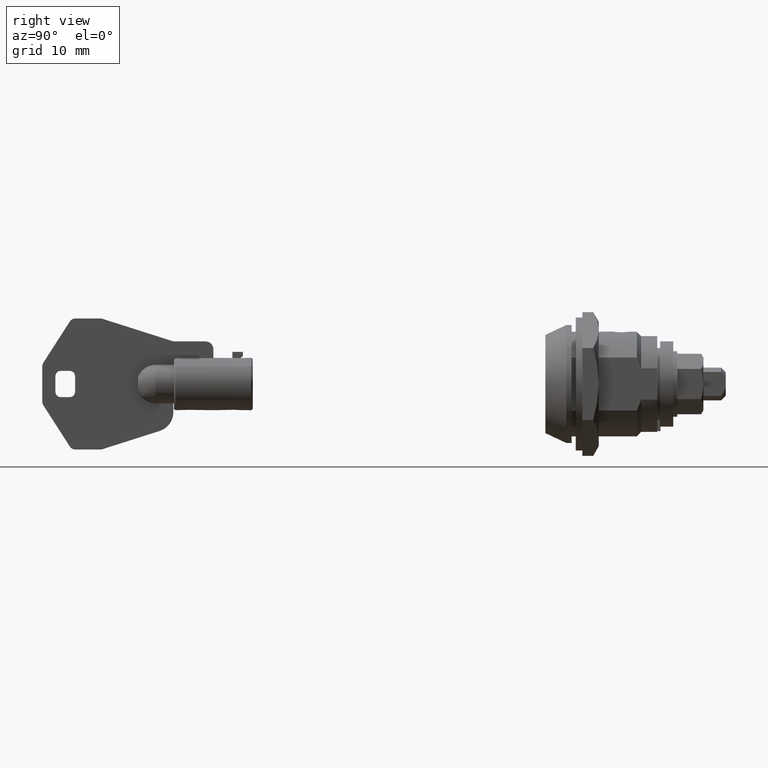
[diagram: clean part render]
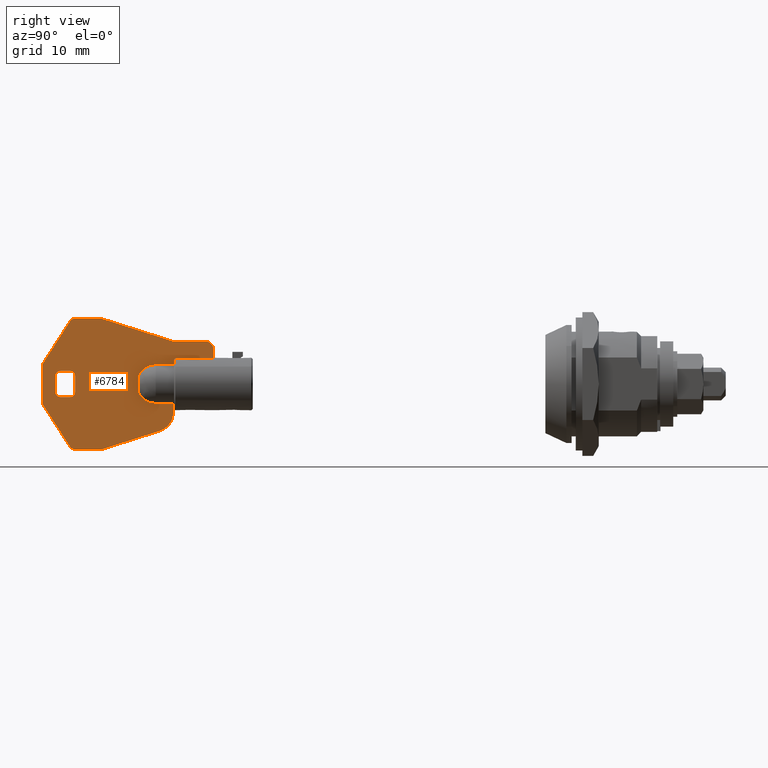
[diagram: same view with one face highlighted and labeled with its STEP entity id]
A machine part, right view. The second image highlights one B-rep face of the part: STEP entity #6784.
In plain terms, the highlighted face is a freeform B-spline surface patch.
Its self-contained STEP definition (entity closure, byte-faithful):
#5703=CARTESIAN_POINT('',(-50.649500000000003,-0.600000000000000,3.954743986656840));
#5704=VERTEX_POINT('',#5703);
#5712=CARTESIAN_POINT('',(-56.449500000000000,-0.600000000000000,3.954743986656840));
#5713=VERTEX_POINT('',#5712);
#5714=CARTESIAN_POINT('',(-50.649500000000003,-0.600000000000000,3.954743986656840));
#5715=CARTESIAN_POINT('',(-56.449500000000000,-0.600000000000000,3.954743986656840));
#5716=QUASI_UNIFORM_CURVE('',1,(#5714,#5715),.UNSPECIFIED.,.F.,.U.);
#5717=EDGE_CURVE('',#5704,#5713,#5716,.T.);
#5791=CARTESIAN_POINT('',(-71.749499999999998,-0.600000000000000,-1.200000000000088));
#5792=VERTEX_POINT('',#5791);
#5793=CARTESIAN_POINT('',(-71.749499999999998,-0.600000000000045,1.200000000000000));
#5794=VERTEX_POINT('',#5793);
#5795=CARTESIAN_POINT('',(-71.749499999999998,-0.600000000000000,-1.200000000000088));
#5796=CARTESIAN_POINT('',(-71.749499999999998,-0.600000000000045,1.200000000000000));
#5797=QUASI_UNIFORM_CURVE('',1,(#5795,#5796),.UNSPECIFIED.,.F.,.U.);
#5798=EDGE_CURVE('',#5792,#5794,#5797,.T.);
#5836=CARTESIAN_POINT('',(-72.549500000000009,-0.600000000000045,-2.0));
#5837=VERTEX_POINT('',#5836);
#5838=CARTESIAN_POINT('',(-72.549500000000009,-0.600000000000045,-2.0));
#5839=CARTESIAN_POINT('',(-72.451308555489618,-0.600000000000048,-2.000092947249154));
#5840=CARTESIAN_POINT('',(-72.294301021157239,-0.600000000000053,-1.970691603403367));
#5841=CARTESIAN_POINT('',(-72.083872913055274,-0.600000000000049,-1.861520411829044));
#5842=CARTESIAN_POINT('',(-71.907328547236602,-0.600000000000042,-1.701605605725473));
#5843=CARTESIAN_POINT('',(-71.778965035456665,-0.600000000000025,-1.468350441424316));
#5844=CARTESIAN_POINT('',(-71.749464732770207,-0.600000000000007,-1.285083247688187));
#5845=CARTESIAN_POINT('',(-71.749499999999998,-0.600000000000000,-1.200000000000088));
#5846=B_SPLINE_CURVE_WITH_KNOTS('',3,(#5838,#5839,#5840,#5841,#5842,#5843,#5844,#5845),.UNSPECIFIED.,.F.,.U.,(4,1,1,1,1,4),(0.000000253206061,0.294531439952640,0.471268046318090,0.706859723835922,1.001410568969660,1.256668595518175),.UNSPECIFIED.);
#5847=EDGE_CURVE('',#5837,#5792,#5846,.T.);
#5876=CARTESIAN_POINT('',(-73.949500000000000,-0.600000000000045,-2.000000000000085));
#5877=VERTEX_POINT('',#5876);
#5878=CARTESIAN_POINT('',(-73.949500000000000,-0.600000000000045,-2.000000000000085));
#5879=CARTESIAN_POINT('',(-72.549500000000009,-0.600000000000045,-2.0));
#5880=QUASI_UNIFORM_CURVE('',1,(#5878,#5879),.UNSPECIFIED.,.F.,.U.);
#5881=EDGE_CURVE('',#5877,#5837,#5880,.T.);
#5913=CARTESIAN_POINT('',(-74.749499999999998,-0.600000000000045,-1.200000000000088));
#5914=VERTEX_POINT('',#5913);
#5915=CARTESIAN_POINT('',(-74.749499999999998,-0.600000000000045,-1.200000000000088));
#5916=CARTESIAN_POINT('',(-74.749542556855019,-0.600000000000045,-1.285089375737021));
#5917=CARTESIAN_POINT('',(-74.724202793623178,-0.600000000000046,-1.442144080449327));
#5918=CARTESIAN_POINT('',(-74.628589877570647,-0.600000000000044,-1.637992890966692));
#5919=CARTESIAN_POINT('',(-74.476026517350377,-0.600000000000044,-1.819488120227156));
#5920=CARTESIAN_POINT('',(-74.250554162845461,-0.600000000000049,-1.962198045736509));
#5921=CARTESIAN_POINT('',(-74.047681189605385,-0.600000000000041,-2.000076958715067));
#5922=CARTESIAN_POINT('',(-73.949500000000000,-0.600000000000045,-2.000000000000085));
#5923=B_SPLINE_CURVE_WITH_KNOTS('',3,(#5915,#5916,#5917,#5918,#5919,#5920,#5921,#5922),.UNSPECIFIED.,.F.,.U.,(4,1,1,1,1,4),(0.000000253213507,0.255258279759457,0.471268046321834,0.647931859035308,0.962137408771080,1.256668595518347),.UNSPECIFIED.);
#5924=EDGE_CURVE('',#5914,#5877,#5923,.T.);
#5953=CARTESIAN_POINT('',(-74.749499999999998,-0.600000000000045,1.200000000000000));
#5954=VERTEX_POINT('',#5953);
#5955=CARTESIAN_POINT('',(-74.749499999999998,-0.600000000000045,1.200000000000000));
#5956=CARTESIAN_POINT('',(-74.749499999999998,-0.600000000000045,-1.200000000000088));
#5957=QUASI_UNIFORM_CURVE('',1,(#5955,#5956),.UNSPECIFIED.,.F.,.U.);
#5958=EDGE_CURVE('',#5954,#5914,#5957,.T.);
#5990=CARTESIAN_POINT('',(-73.949500000000000,-0.600000000000045,1.999999999999800));
#5991=VERTEX_POINT('',#5990);
#5992=CARTESIAN_POINT('',(-73.949500000000000,-0.600000000000045,1.999999999999800));
#5993=CARTESIAN_POINT('',(-74.034589221812169,-0.600000000000045,2.000042173454522));
#5994=CARTESIAN_POINT('',(-74.191633542217630,-0.600000000000046,1.974693029693586));
#5995=CARTESIAN_POINT('',(-74.429130502944389,-0.600000000000045,1.858880178659275));
#5996=CARTESIAN_POINT('',(-74.598934937609584,-0.600000000000044,1.689061235257726));
#5997=CARTESIAN_POINT('',(-74.720191468010739,-0.600000000000048,1.455194935026146));
#5998=CARTESIAN_POINT('',(-74.749589503330924,-0.600000000000044,1.298190341851433));
#5999=CARTESIAN_POINT('',(-74.749499999999998,-0.600000000000045,1.200000000000000));
#6000=B_SPLINE_CURVE_WITH_KNOTS('',3,(#5992,#5993,#5994,#5995,#5996,#5997,#5998,#5999),.UNSPECIFIED.,.F.,.U.,(4,1,1,1,1,4),(0.000000253209367,0.255258279756043,0.471268046319142,0.785400802405625,0.962137408771063,1.256668595518009),.UNSPECIFIED.);
#6001=EDGE_CURVE('',#5991,#5954,#6000,.T.);
#6030=CARTESIAN_POINT('',(-72.549500000000009,-0.600000000000045,1.999999999999800));
#6031=VERTEX_POINT('',#6030);
#6032=CARTESIAN_POINT('',(-72.549500000000009,-0.600000000000045,1.999999999999800));
#6033=CARTESIAN_POINT('',(-73.949500000000000,-0.600000000000045,1.999999999999800));
#6034=QUASI_UNIFORM_CURVE('',1,(#6032,#6033),.UNSPECIFIED.,.F.,.U.);
#6035=EDGE_CURVE('',#6031,#5991,#6034,.T.);
#6067=CARTESIAN_POINT('',(-71.749499999999998,-0.600000000000045,1.200000000000000));
#6068=CARTESIAN_POINT('',(-71.749465124096503,-0.600000000000045,1.285084961670922));
#6069=CARTESIAN_POINT('',(-71.778974756144194,-0.600000000000045,1.468342623311177));
#6070=CARTESIAN_POINT('',(-71.907318310587627,-0.600000000000045,1.701614646907226));
#6071=CARTESIAN_POINT('',(-72.083877260297797,-0.600000000000044,1.861515023231507));
#6072=CARTESIAN_POINT('',(-72.294300029168511,-0.600000000000047,1.970695274711989));
#6073=CARTESIAN_POINT('',(-72.451309154801820,-0.600000000000044,2.000090764956840));
#6074=CARTESIAN_POINT('',(-72.549500000000009,-0.600000000000045,1.999999999999800));
#6075=B_SPLINE_CURVE_WITH_KNOTS('',3,(#6067,#6068,#6069,#6070,#6071,#6072,#6073,#6074),.UNSPECIFIED.,.F.,.U.,(4,1,1,1,1,4),(0.000000253196523,0.255258279746976,0.549809124883157,0.785400802402584,0.962137408769121,1.256668595518096),.UNSPECIFIED.);
#6076=EDGE_CURVE('',#5794,#6031,#6075,.T.);
#6108=CARTESIAN_POINT('',(-76.590699991941506,-0.600000000000045,3.247000012534165));
#6109=VERTEX_POINT('',#6108);
#6110=CARTESIAN_POINT('',(-76.749499999999998,-0.600000000000045,2.705999999999905));
#6111=VERTEX_POINT('',#6110);
#6112=CARTESIAN_POINT('',(-76.590699991941506,-0.600000000000045,3.247000012534165));
#6113=CARTESIAN_POINT('',(-76.694019973510123,-0.600000000000045,3.086837102616682));
#6114=CARTESIAN_POINT('',(-76.749989340882166,-0.600000000000045,2.896631977132596));
#6115=CARTESIAN_POINT('',(-76.749499999999998,-0.600000000000045,2.705999999999905));
#6116=B_SPLINE_CURVE_WITH_KNOTS('',3,(#6112,#6113,#6114,#6115),.UNSPECIFIED.,.F.,.U.,(4,4),(0.000000034955213,0.571608625622774),.UNSPECIFIED.);
#6117=EDGE_CURVE('',#6109,#6111,#6116,.T.);
#6148=CARTESIAN_POINT('',(-76.749499999999998,-0.600000000000045,-2.707000000000000));
#6149=VERTEX_POINT('',#6148);
#6150=CARTESIAN_POINT('',(-76.749499999999998,-0.600000000000045,-2.707000000000000));
#6151=CARTESIAN_POINT('',(-76.749499999999998,-0.600000000000045,2.705999999999905));
#6152=QUASI_UNIFORM_CURVE('',1,(#6150,#6151),.UNSPECIFIED.,.F.,.U.);
#6153=EDGE_CURVE('',#6149,#6111,#6152,.T.);
#6185=CARTESIAN_POINT('',(-76.575233477589791,-0.600000000000045,-3.271060479015740));
#6186=VERTEX_POINT('',#6185);
#6187=CARTESIAN_POINT('',(-76.749499999999998,-0.600000000000045,-2.707000000000000));
#6188=CARTESIAN_POINT('',(-76.749526903802902,-0.600000000000045,-2.794401100571473));
#6189=CARTESIAN_POINT('',(-76.723139286748932,-0.600000000000045,-2.994149830777344));
#6190=CARTESIAN_POINT('',(-76.638689682671128,-0.600000000000045,-3.178310743442937));
#6191=CARTESIAN_POINT('',(-76.575233477589791,-0.600000000000045,-3.271060479015740));
#6192=B_SPLINE_CURVE_WITH_KNOTS('',3,(#6187,#6188,#6189,#6190,#6191),.UNSPECIFIED.,.F.,.U.,(4,1,4),(0.000000021844102,0.262206992928891,0.599330020672555),.UNSPECIFIED.);
#6193=EDGE_CURVE('',#6149,#6186,#6192,.T.);
#6219=CARTESIAN_POINT('',(-72.544800030148707,-0.600000000000045,-9.540999953099240));
#6220=VERTEX_POINT('',#6219);
#6221=CARTESIAN_POINT('',(-72.544800030148707,-0.600000000000045,-9.540999953099240));
#6222=CARTESIAN_POINT('',(-76.575233477589791,-0.600000000000045,-3.271060479015740));
#6223=QUASI_UNIFORM_CURVE('',1,(#6221,#6222),.UNSPECIFIED.,.F.,.U.);
#6224=EDGE_CURVE('',#6220,#6186,#6223,.T.);
#6256=CARTESIAN_POINT('',(-71.703600000000009,-0.600000000000045,-10.000000000000201));
#6257=VERTEX_POINT('',#6256);
#6258=CARTESIAN_POINT('',(-72.544800030148707,-0.600000000000045,-9.540999953099240));
#6259=CARTESIAN_POINT('',(-72.505398941526295,-0.600000000000045,-9.602298782595780));
#6260=CARTESIAN_POINT('',(-72.393378154143534,-0.600000000000045,-9.740682868375744));
#6261=CARTESIAN_POINT('',(-72.119833127087006,-0.600000000000045,-9.937897060081184));
#6262=CARTESIAN_POINT('',(-71.859819788343884,-0.600000000000045,-10.000376966599349));
#6263=CARTESIAN_POINT('',(-71.703600000000009,-0.600000000000045,-10.000000000000201));
#6264=B_SPLINE_CURVE_WITH_KNOTS('',3,(#6258,#6259,#6260,#6261,#6262,#6263),.UNSPECIFIED.,.F.,.U.,(4,1,1,4),(0.000000111795139,0.218626020803119,0.530935809670153,0.999442190820403),.UNSPECIFIED.);
#6265=EDGE_CURVE('',#6220,#6257,#6264,.T.);
#6292=CARTESIAN_POINT('',(-67.904799999999994,-0.600000000000045,-10.0));
#6293=VERTEX_POINT('',#6292);
#6294=CARTESIAN_POINT('',(-67.904799999999994,-0.600000000000045,-10.0));
#6295=CARTESIAN_POINT('',(-71.703600000000009,-0.600000000000045,-10.000000000000201));
#6296=QUASI_UNIFORM_CURVE('',1,(#6294,#6295),.UNSPECIFIED.,.F.,.U.);
#6297=EDGE_CURVE('',#6293,#6257,#6296,.T.);
#6329=CARTESIAN_POINT('',(-67.601600000000005,-0.600000000000045,-9.952999999999999));
#6330=VERTEX_POINT('',#6329);
#6331=CARTESIAN_POINT('',(-67.904799999999994,-0.600000000000045,-10.0));
#6332=CARTESIAN_POINT('',(-67.802113661642409,-0.600000000000044,-10.000092084419970));
#6333=CARTESIAN_POINT('',(-67.699440841979452,-0.600000000000045,-9.984155325961362));
#6334=CARTESIAN_POINT('',(-67.601600000000005,-0.600000000000045,-9.952999999999999));
#6335=B_SPLINE_CURVE_WITH_KNOTS('',3,(#6331,#6332,#6333,#6334),.UNSPECIFIED.,.F.,.U.,(4,4),(0.000000010652725,0.308060877283309),.UNSPECIFIED.);
#6336=EDGE_CURVE('',#6293,#6330,#6335,.T.);
#6361=CARTESIAN_POINT('',(-58.776392768688602,-0.600000000000045,-7.144791802858300));
#6362=VERTEX_POINT('',#6361);
#6363=CARTESIAN_POINT('',(-58.776392768688602,-0.600000000000045,-7.144791802858300));
#6364=CARTESIAN_POINT('',(-67.601600000000005,-0.600000000000045,-9.952999999999999));
#6365=QUASI_UNIFORM_CURVE('',1,(#6363,#6364),.UNSPECIFIED.,.F.,.U.);
#6366=EDGE_CURVE('',#6362,#6330,#6365,.T.);
#6398=CARTESIAN_POINT('',(-56.749500000000012,-0.600000000000045,-4.307000000000090));
#6399=VERTEX_POINT('',#6398);
#6400=CARTESIAN_POINT('',(-58.776392768688602,-0.600000000000045,-7.144791802858300));
#6401=CARTESIAN_POINT('',(-58.427873887224123,-0.600000000000046,-7.025627154550217));
#6402=CARTESIAN_POINT('',(-57.947738067109647,-0.600000000000044,-6.753596632849154));
#6403=CARTESIAN_POINT('',(-57.370120746255097,-0.600000000000045,-6.175508092192882));
#6404=CARTESIAN_POINT('',(-57.015697374242322,-0.600000000000048,-5.612769290630858));
#6405=CARTESIAN_POINT('',(-56.795136511190456,-0.600000000000039,-4.946598811788525));
#6406=CARTESIAN_POINT('',(-56.749470229849777,-0.600000000000049,-4.520204147419601));
#6407=CARTESIAN_POINT('',(-56.749500000000012,-0.600000000000045,-4.307000000000090));
#6408=B_SPLINE_CURVE_WITH_KNOTS('',3,(#6400,#6401,#6402,#6403,#6404,#6405,#6406,#6407),.UNSPECIFIED.,.F.,.U.,(4,1,1,1,1,4),(0.000000082544289,1.104800927938502,1.628138406523068,2.442170962838942,3.081796882679319,3.721413225382552),.UNSPECIFIED.);
#6409=EDGE_CURVE('',#6362,#6399,#6408,.T.);
#6447=CARTESIAN_POINT('',(-50.649500000000003,-0.600000000000045,5.300000000000000));
#6448=VERTEX_POINT('',#6447);
#6449=CARTESIAN_POINT('',(-51.849499999999999,-0.600000000000045,6.500000000000000));
#6450=VERTEX_POINT('',#6449);
#6451=CARTESIAN_POINT('',(-50.649500000000003,-0.600000000000045,5.300000000000000));
#6452=CARTESIAN_POINT('',(-50.649462161798269,-0.600000000000045,5.407994637703872));
#6453=CARTESIAN_POINT('',(-50.677533661782910,-0.600000000000046,5.614135681138730));
#6454=CARTESIAN_POINT('',(-50.809933612656302,-0.600000000000045,5.934052489696290));
#6455=CARTESIAN_POINT('',(-51.031163106370798,-0.600000000000044,6.203575308760115));
#6456=CARTESIAN_POINT('',(-51.388296598942723,-0.600000000000046,6.435900580509963));
#6457=CARTESIAN_POINT('',(-51.672726191557892,-0.600000000000044,6.500280945310728));
#6458=CARTESIAN_POINT('',(-51.849499999999999,-0.600000000000045,6.500000000000000));
#6459=B_SPLINE_CURVE_WITH_KNOTS('',3,(#6451,#6452,#6453,#6454,#6455,#6456,#6457,#6458),.UNSPECIFIED.,.F.,.U.,(4,1,1,1,1,4),(0.000000228748210,0.323977944125270,0.618527493011644,1.030860055468668,1.354842900653564,1.885002893242793),.UNSPECIFIED.);
#6460=EDGE_CURVE('',#6448,#6450,#6459,.T.);
#6495=CARTESIAN_POINT('',(-56.749500000000012,-0.600000000000045,6.500000000000000));
#6496=VERTEX_POINT('',#6495);
#6497=CARTESIAN_POINT('',(-56.749500000000012,-0.600000000000045,6.500000000000000));
#6498=CARTESIAN_POINT('',(-51.849499999999999,-0.600000000000045,6.500000000000000));
#6499=QUASI_UNIFORM_CURVE('',1,(#6497,#6498),.UNSPECIFIED.,.F.,.U.);
#6500=EDGE_CURVE('',#6496,#6450,#6499,.T.);
#6523=CARTESIAN_POINT('',(-67.601600000000005,-0.600000000000045,9.952999999999999));
#6524=VERTEX_POINT('',#6523);
#6525=CARTESIAN_POINT('',(-67.601600000000005,-0.600000000000045,9.952999999999999));
#6526=CARTESIAN_POINT('',(-56.749500000000012,-0.600000000000045,6.500000000000000));
#6527=QUASI_UNIFORM_CURVE('',1,(#6525,#6526),.UNSPECIFIED.,.F.,.U.);
#6528=EDGE_CURVE('',#6524,#6496,#6527,.T.);
#6560=CARTESIAN_POINT('',(-67.904799999999994,-0.600000000000045,9.999999999999799));
#6561=VERTEX_POINT('',#6560);
#6562=CARTESIAN_POINT('',(-67.601600000000005,-0.600000000000045,9.952999999999999));
#6563=CARTESIAN_POINT('',(-67.699440836960363,-0.600000000000044,9.984154339987573));
#6564=CARTESIAN_POINT('',(-67.802111993328296,-0.600000000000045,10.000089833540139));
#6565=CARTESIAN_POINT('',(-67.904799999999994,-0.600000000000045,9.999999999999799));
#6566=B_SPLINE_CURVE_WITH_KNOTS('',3,(#6562,#6563,#6564,#6565),.UNSPECIFIED.,.F.,.U.,(4,4),(0.000000010649329,0.308060645715497),.UNSPECIFIED.);
#6567=EDGE_CURVE('',#6524,#6561,#6566,.T.);
#6592=CARTESIAN_POINT('',(-71.703600000000009,-0.600000000000045,9.999999999999799));
#6593=VERTEX_POINT('',#6592);
#6594=CARTESIAN_POINT('',(-71.703600000000009,-0.600000000000045,9.999999999999799));
#6595=CARTESIAN_POINT('',(-67.904799999999994,-0.600000000000045,9.999999999999799));
#6596=QUASI_UNIFORM_CURVE('',1,(#6594,#6595),.UNSPECIFIED.,.F.,.U.);
#6597=EDGE_CURVE('',#6593,#6561,#6596,.T.);
#6629=CARTESIAN_POINT('',(-72.559557772680591,-0.600000000000045,9.517045734328759));
#6630=VERTEX_POINT('',#6629);
#6631=CARTESIAN_POINT('',(-71.703600000000009,-0.600000000000045,9.999999999999799));
#6632=CARTESIAN_POINT('',(-71.778509833456383,-0.600000000000045,10.000003466159230));
#6633=CARTESIAN_POINT('',(-71.960450561622778,-0.600000000000045,9.979501054648145));
#6634=CARTESIAN_POINT('',(-72.281960533690039,-0.600000000000044,9.849201139866191));
#6635=CARTESIAN_POINT('',(-72.476798150382436,-0.600000000000046,9.654678757184593));
#6636=CARTESIAN_POINT('',(-72.559557772680591,-0.600000000000045,9.517045734328759));
#6637=B_SPLINE_CURVE_WITH_KNOTS('',3,(#6631,#6632,#6633,#6634,#6635,#6636),.UNSPECIFIED.,.F.,.U.,(4,1,1,4),(0.000000094577628,0.224750629220160,0.545816627171945,1.027444513007417),.UNSPECIFIED.);
#6638=EDGE_CURVE('',#6593,#6630,#6637,.T.);
#6665=CARTESIAN_POINT('',(-76.590699991941506,-0.600000000000045,3.247000012534165));
#6666=CARTESIAN_POINT('',(-72.559557772680591,-0.600000000000045,9.517045734328759));
#6667=QUASI_UNIFORM_CURVE('',1,(#6665,#6666),.UNSPECIFIED.,.F.,.U.);
#6668=EDGE_CURVE('',#6109,#6630,#6667,.T.);
#6680=CARTESIAN_POINT('',(-78.053191181043729,-0.600000000000000,-10.998999961236320));
#6681=CARTESIAN_POINT('',(-49.345806485434437,-0.600000000000000,-10.998999961236320));
#6682=CARTESIAN_POINT('',(-78.053191181043729,-0.600000000000000,10.999000497677720));
#6683=CARTESIAN_POINT('',(-49.345806485434437,-0.600000000000000,10.999000497677720));
#6684=B_SPLINE_SURFACE_WITH_KNOTS('',1,1,((#6680,#6682),(#6681,#6683)),.UNSPECIFIED.,.F.,.F.,.U.,(2,2),(2,2),(0.0,28.707384695609289),(0.0,21.998000458914039),.UNSPECIFIED.);
#6685=CARTESIAN_POINT('',(-59.449500000000000,-0.600000000000000,-2.939387691339715));
#6686=VERTEX_POINT('',#6685);
#6687=CARTESIAN_POINT('',(-56.749500000000012,-0.600000000000000,-2.939387691339610));
#6688=VERTEX_POINT('',#6687);
#6689=CARTESIAN_POINT('',(-59.449500000000000,-0.600000000000000,-2.939387691339715));
#6690=CARTESIAN_POINT('',(-56.749500000000012,-0.600000000000000,-2.939387691339610));
#6691=QUASI_UNIFORM_CURVE('',1,(#6689,#6690),.UNSPECIFIED.,.F.,.U.);
#6692=EDGE_CURVE('',#6686,#6688,#6691,.T.);
#6693=ORIENTED_EDGE('',*,*,#6692,.F.);
#6694=CARTESIAN_POINT('',(-62.149500000000003,-0.600000000000000,-1.161895003862256));
#6695=VERTEX_POINT('',#6694);
#6696=CARTESIAN_POINT('',(-62.149500000000003,-0.600000000000000,-1.161895003862256));
#6697=CARTESIAN_POINT('',(-62.029837367916912,-0.599999999999999,-1.440336096057699));
#6698=CARTESIAN_POINT('',(-61.751276152965580,-0.600000000000003,-1.883170092748413));
#6699=CARTESIAN_POINT('',(-61.171751502085293,-0.599999999999998,-2.418681277181639));
#6700=CARTESIAN_POINT('',(-60.429793548835264,-0.600000000000002,-2.824462186380062));
#6701=CARTESIAN_POINT('',(-59.806058751805800,-0.599999999999999,-2.939658557919310));
#6702=CARTESIAN_POINT('',(-59.449500000000000,-0.600000000000000,-2.939387691339715));
#6703=B_SPLINE_CURVE_WITH_KNOTS('',3,(#6696,#6697,#6698,#6699,#6700,#6701,#6702),.UNSPECIFIED.,.F.,.U.,(4,1,1,1,4),(0.000000083578625,0.909162524544118,1.550942107685343,2.353122663324840,3.422724743820886),.UNSPECIFIED.);
#6704=EDGE_CURVE('',#6695,#6686,#6703,.T.);
#6705=ORIENTED_EDGE('',*,*,#6704,.F.);
#6706=CARTESIAN_POINT('',(-62.149500000000003,-0.600000000000000,1.161895003862256));
#6707=VERTEX_POINT('',#6706);
#6708=CARTESIAN_POINT('',(-62.149500000000003,-0.600000000000000,1.161895003862256));
#6709=CARTESIAN_POINT('',(-62.149500000000003,-0.600000000000000,-1.161895003862256));
#6710=QUASI_UNIFORM_CURVE('',1,(#6708,#6709),.UNSPECIFIED.,.F.,.U.);
#6711=EDGE_CURVE('',#6707,#6695,#6710,.T.);
#6712=ORIENTED_EDGE('',*,*,#6711,.F.);
#6713=CARTESIAN_POINT('',(-59.449500000000000,-0.600000000000000,2.939387691339715));
#6714=VERTEX_POINT('',#6713);
#6715=CARTESIAN_POINT('',(-59.449500000000000,-0.600000000000000,2.939387691339715));
#6716=CARTESIAN_POINT('',(-59.663415432310487,-0.600000000000000,2.939414550461391));
#6717=CARTESIAN_POINT('',(-60.126918170823039,-0.600000000000000,2.888614381330635));
#6718=CARTESIAN_POINT('',(-60.735596890462183,-0.600000000000000,2.669391310748883));
#6719=CARTESIAN_POINT('',(-61.295331978692111,-0.599999999999999,2.315304307576073));
#6720=CARTESIAN_POINT('',(-61.783524131057703,-0.600000000000002,1.838863284327661));
#6721=CARTESIAN_POINT('',(-62.043878032774188,-0.599999999999998,1.407556361190104));
#6722=CARTESIAN_POINT('',(-62.149500000000003,-0.600000000000000,1.161895003862256));
#6723=B_SPLINE_CURVE_WITH_KNOTS('',3,(#6715,#6716,#6717,#6718,#6719,#6720,#6721,#6722),.UNSPECIFIED.,.F.,.U.,(4,1,1,1,1,4),(0.000000083584780,0.641760333207886,1.390501738823350,1.925280143717872,2.620524854665744,3.422724743820883),.UNSPECIFIED.);
#6724=EDGE_CURVE('',#6714,#6707,#6723,.T.);
#6725=ORIENTED_EDGE('',*,*,#6724,.F.);
#6726=CARTESIAN_POINT('',(-56.649500000000003,-0.600000000000000,2.939387691339610));
#6727=VERTEX_POINT('',#6726);
#6728=CARTESIAN_POINT('',(-56.649500000000003,-0.600000000000000,2.939387691339610));
#6729=CARTESIAN_POINT('',(-59.449500000000000,-0.600000000000000,2.939387691339715));
#6730=QUASI_UNIFORM_CURVE('',1,(#6728,#6729),.UNSPECIFIED.,.F.,.U.);
#6731=EDGE_CURVE('',#6727,#6714,#6730,.T.);
#6732=ORIENTED_EDGE('',*,*,#6731,.F.);
#6733=CARTESIAN_POINT('',(-56.649500000000003,-0.600000000000000,3.752332607858545));
#6734=VERTEX_POINT('',#6733);
#6735=CARTESIAN_POINT('',(-56.649500000000003,-0.600000000000000,3.752332607858545));
#6736=CARTESIAN_POINT('',(-56.649500000000003,-0.600000000000000,2.939387691339610));
#6737=QUASI_UNIFORM_CURVE('',1,(#6735,#6736),.UNSPECIFIED.,.F.,.U.);
#6738=EDGE_CURVE('',#6734,#6727,#6737,.T.);
#6739=ORIENTED_EDGE('',*,*,#6738,.F.);
#6740=CARTESIAN_POINT('',(-56.649500000000003,-0.600000000000000,3.752332607858545));
#6741=CARTESIAN_POINT('',(-56.449500000000000,-0.600000000000000,3.954743986656840));
#6742=QUASI_UNIFORM_CURVE('',1,(#6740,#6741),.UNSPECIFIED.,.F.,.U.);
#6743=EDGE_CURVE('',#6734,#5713,#6742,.T.);
#6744=ORIENTED_EDGE('',*,*,#6743,.T.);
#6745=ORIENTED_EDGE('',*,*,#5717,.F.);
#6746=CARTESIAN_POINT('',(-50.649500000000003,-0.600000000000045,5.300000000000000));
#6747=CARTESIAN_POINT('',(-50.649500000000003,-0.600000000000000,3.954743986656840));
#6748=QUASI_UNIFORM_CURVE('',1,(#6746,#6747),.UNSPECIFIED.,.F.,.U.);
#6749=EDGE_CURVE('',#6448,#5704,#6748,.T.);
#6750=ORIENTED_EDGE('',*,*,#6749,.F.);
#6751=ORIENTED_EDGE('',*,*,#6460,.T.);
#6752=ORIENTED_EDGE('',*,*,#6500,.F.);
#6753=ORIENTED_EDGE('',*,*,#6528,.F.);
#6754=ORIENTED_EDGE('',*,*,#6567,.T.);
#6755=ORIENTED_EDGE('',*,*,#6597,.F.);
#6756=ORIENTED_EDGE('',*,*,#6638,.T.);
#6757=ORIENTED_EDGE('',*,*,#6668,.F.);
#6758=ORIENTED_EDGE('',*,*,#6117,.T.);
#6759=ORIENTED_EDGE('',*,*,#6153,.F.);
#6760=ORIENTED_EDGE('',*,*,#6193,.T.);
#6761=ORIENTED_EDGE('',*,*,#6224,.F.);
#6762=ORIENTED_EDGE('',*,*,#6265,.T.);
#6763=ORIENTED_EDGE('',*,*,#6297,.F.);
#6764=ORIENTED_EDGE('',*,*,#6336,.T.);
#6765=ORIENTED_EDGE('',*,*,#6366,.F.);
#6766=ORIENTED_EDGE('',*,*,#6409,.T.);
#6767=CARTESIAN_POINT('',(-56.749500000000012,-0.600000000000000,-2.939387691339610));
#6768=CARTESIAN_POINT('',(-56.749500000000012,-0.600000000000045,-4.307000000000090));
#6769=QUASI_UNIFORM_CURVE('',1,(#6767,#6768),.UNSPECIFIED.,.F.,.U.);
#6770=EDGE_CURVE('',#6688,#6399,#6769,.T.);
#6771=ORIENTED_EDGE('',*,*,#6770,.F.);
#6772=EDGE_LOOP('',(#6693,#6705,#6712,#6725,#6732,#6739,#6744,#6745,#6750,#6751,#6752,#6753,#6754,#6755,#6756,#6757,#6758,#6759,#6760,#6761,#6762,#6763,#6764,#6765,#6766,#6771));
#6773=FACE_OUTER_BOUND('',#6772,.T.);
#6774=ORIENTED_EDGE('',*,*,#6076,.F.);
#6775=ORIENTED_EDGE('',*,*,#5798,.F.);
#6776=ORIENTED_EDGE('',*,*,#5847,.F.);
#6777=ORIENTED_EDGE('',*,*,#5881,.F.);
#6778=ORIENTED_EDGE('',*,*,#5924,.F.);
#6779=ORIENTED_EDGE('',*,*,#5958,.F.);
#6780=ORIENTED_EDGE('',*,*,#6001,.F.);
#6781=ORIENTED_EDGE('',*,*,#6035,.F.);
#6782=EDGE_LOOP('',(#6774,#6775,#6776,#6777,#6778,#6779,#6780,#6781));
#6783=FACE_BOUND('',#6782,.T.);
#6784=ADVANCED_FACE('',(#6773,#6783),#6684,.T.);